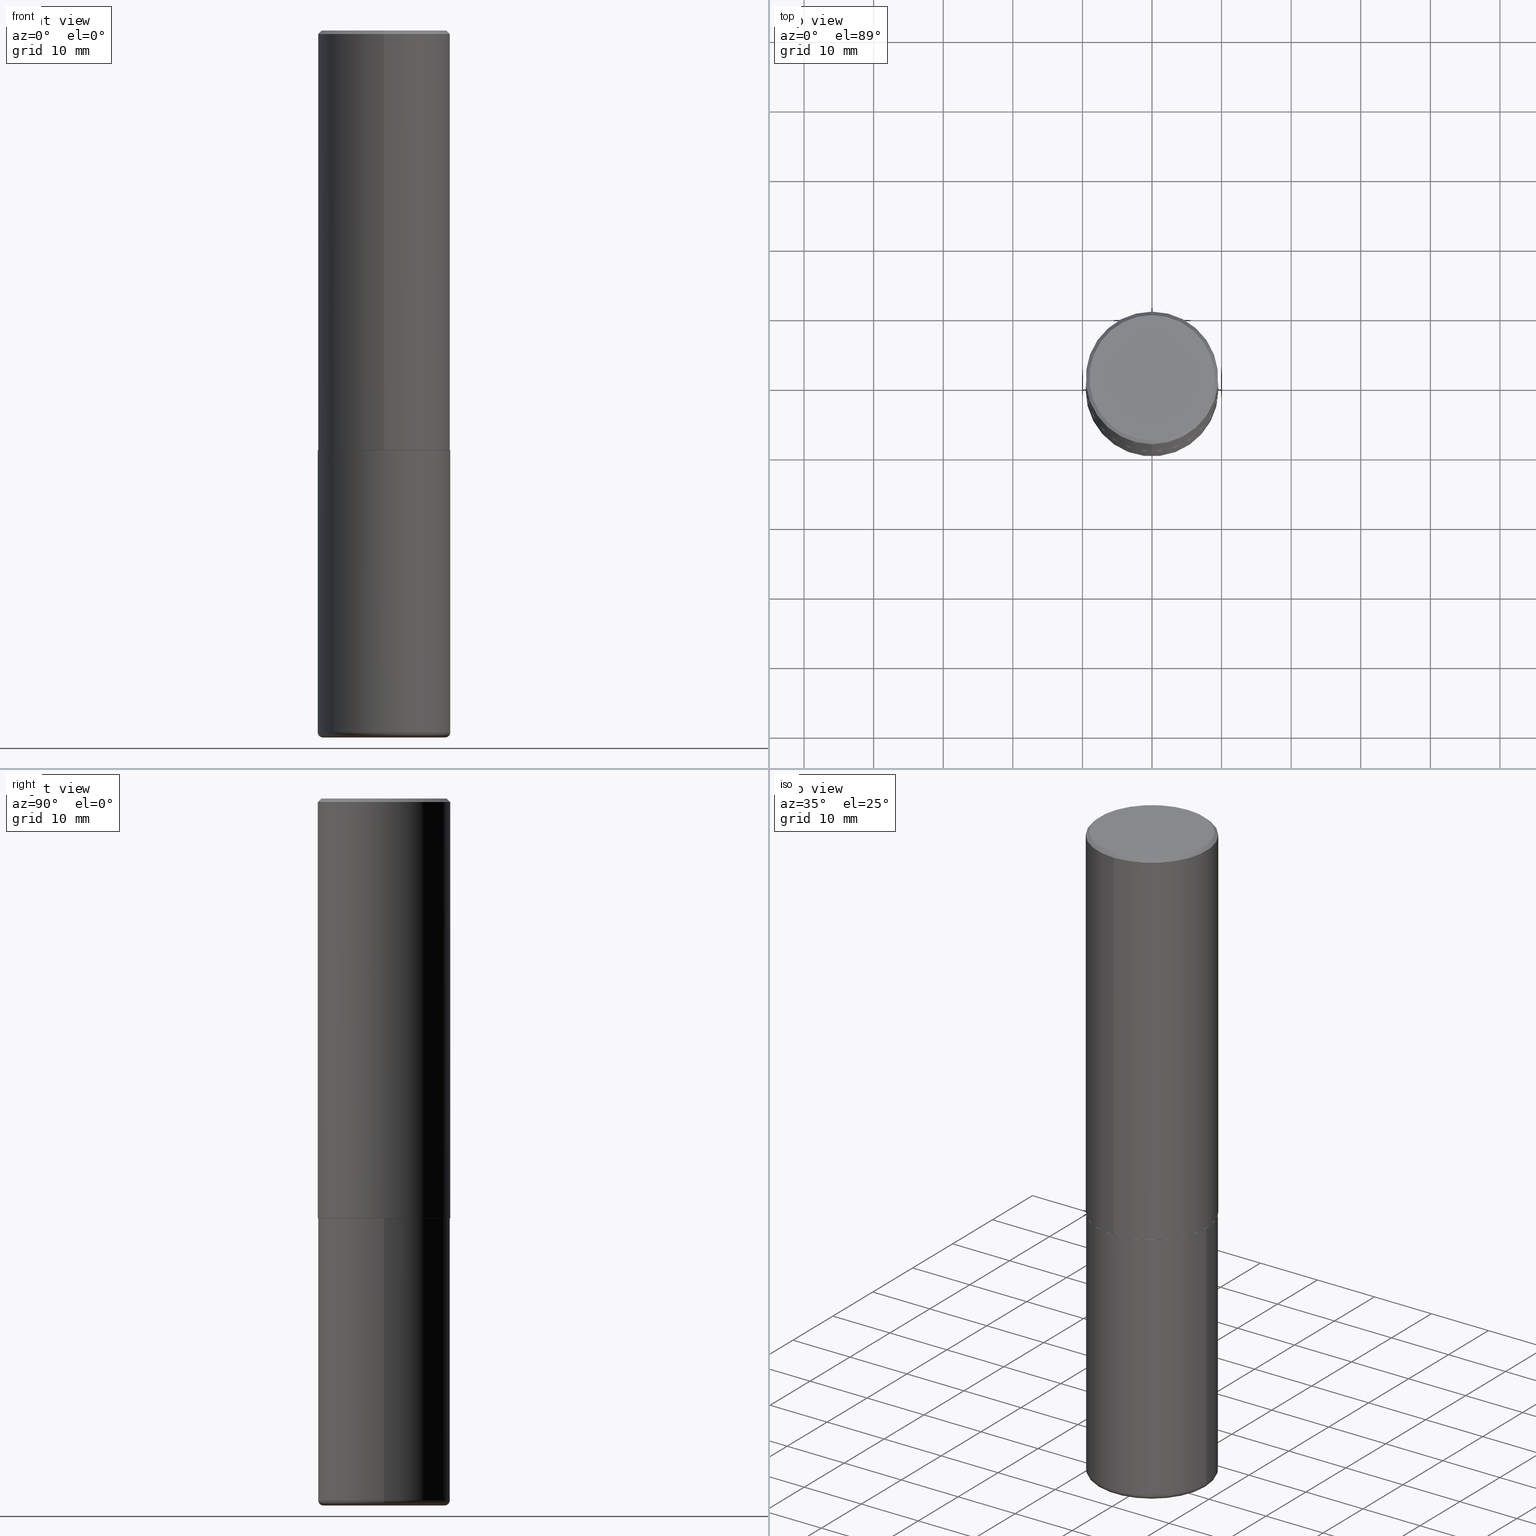
[diagram: canonical four-view strip — front | top / right | iso, engineering-drawing reading convention]
A machine part, canonical four-view strip (front | top / right | iso — engineering-drawing reading convention). The complete STEP part file that produces these views, byte-faithful:
ISO-10303-21;
HEADER;
FILE_DESCRIPTION (( 'STEP AP203' ),
    '1' );
FILE_NAME ('37222.STEP',
    '2024-03-01T22:12:57',
    ( '' ),
    ( '' ),
    'SwSTEP 2.0',
    'SolidWorks 2023',
    '' );
FILE_SCHEMA (( 'CONFIG_CONTROL_DESIGN' ));
ENDSEC;

DATA;
#1 = ORIENTED_EDGE ( 'NONE', *, *, #379, .F. ) ;
#2 = ADVANCED_FACE ( 'NONE', ( #380 ), #235, .T. ) ;
#3 = CARTESIAN_POINT ( 'NONE',  ( 9.708511160554992872E-29, -1.386118091520728738E-14, -3.970000000000000195 ) ) ;
#4 = CARTESIAN_POINT ( 'NONE',  ( 0.000000000000000000, 0.000000000000000000, 0.000000000000000000 ) ) ;
#5 = CLOSED_SHELL ( 'NONE', ( #63, #295, #2, #176, #353, #202, #34, #115 ) ) ;
#6 = VECTOR ( 'NONE', #133, 39.37007874015748143 ) ;
#7 = CARTESIAN_POINT ( 'NONE',  ( 9.781875224740546387E-29, -1.396592535537258233E-14, -4.000000000000000000 ) ) ;
#8 = FACE_OUTER_BOUND ( 'NONE', #311, .T. ) ;
#9 = APPROVAL_STATUS ( 'not_yet_approved' ) ;
#10 = LINE ( 'NONE', #141, #6 ) ;
#11 = EDGE_CURVE ( 'NONE', #87, #249, #285, .T. ) ;
#12 = EDGE_LOOP ( 'NONE', ( #1, #147, #318, #281 ) ) ;
#13 = APPROVAL_ROLE ( '' ) ;
#14 = CC_DESIGN_DATE_AND_TIME_ASSIGNMENT ( #46, #242, ( #354 ) ) ;
#15 = CIRCLE ( 'NONE', #261, 0.02999999999999995379 ) ;
#16 = ORIENTED_EDGE ( 'NONE', *, *, #153, .F. ) ;
#17 = UNCERTAINTY_MEASURE_WITH_UNIT (LENGTH_MEASURE( 1.000000000000000082E-05 ), #88, 'distance_accuracy_value', 'NONE');
#18 = ORIENTED_EDGE ( 'NONE', *, *, #126, .T. ) ;
#19 = DATE_AND_TIME ( #119, #75 ) ;
#20 = FACE_OUTER_BOUND ( 'NONE', #299, .T. ) ;
#21 = CIRCLE ( 'NONE', #168, 0.3750000000000000555 ) ;
#22 = PRODUCT_DEFINITION_FORMATION_WITH_SPECIFIED_SOURCE ( 'ANY', '', #360, .NOT_KNOWN. ) ;
#23 = DIRECTION ( 'NONE',  ( -2.445468806185136597E-29, 3.491481338843145583E-15, 1.000000000000000000 ) ) ;
#24 = ORIENTED_EDGE ( 'NONE', *, *, #189, .T. ) ;
#25 = PERSON ( 'UNSPECIFIED', 'UNSPECIFIED', 'UNSPECIFIED', ('UNSPECIFIED'), ('UNSPECIFIED'), ('UNSPECIFIED') ) ;
#26 = PRODUCT_DEFINITION ( 'UNKNOWN', '', #22, #314 ) ;
#27 = AXIS2_PLACEMENT_3D ( 'NONE', #130, #164, #390 ) ;
#28 = CLOSED_SHELL ( 'NONE', ( #186, #289, #336, #100, #90, #123 ) ) ;
#29 = AXIS2_PLACEMENT_3D ( 'NONE', #35, #196, #148 ) ;
#30 = FACE_OUTER_BOUND ( 'NONE', #207, .T. ) ;
#31 = DIRECTION ( 'NONE',  ( -2.445468806185136597E-29, 3.491481338843145583E-15, 1.000000000000000000 ) ) ;
#32 = CARTESIAN_POINT ( 'NONE',  ( 9.781875224740546387E-29, -1.396592535537258233E-14, -4.000000000000000000 ) ) ;
#33 = CARTESIAN_POINT ( 'NONE',  ( 0.000000000000000000, 0.000000000000000000, 0.000000000000000000 ) ) ;
#34 = ADVANCED_FACE ( 'NONE', ( #20 ), #356, .F. ) ;
#35 = CARTESIAN_POINT ( 'NONE',  ( 5.805863974919259746E-29, -8.295310498419343824E-15, -2.375000000000000000 ) ) ;
#36 = AXIS2_PLACEMENT_3D ( 'NONE', #7, #137, #337 ) ;
#37 = VECTOR ( 'NONE', #83, 39.37007874015748143 ) ;
#38 = CC_DESIGN_PERSON_AND_ORGANIZATION_ASSIGNMENT ( #402, #376, ( #22 ) ) ;
#39 = DIRECTION ( 'NONE',  ( 2.438088387897960049E-29, -3.491481338843145188E-15, -1.000000000000000000 ) ) ;
#40 = CARTESIAN_POINT ( 'NONE',  ( -0.3749999999999999445, -1.119664565610691011E-14, -3.969999999999999307 ) ) ;
#41 = SHAPE_DEFINITION_REPRESENTATION ( #165, #218 ) ;
#42 = CC_DESIGN_PERSON_AND_ORGANIZATION_ASSIGNMENT ( #279, #112, ( #26 ) ) ;
#43 = ORIENTED_EDGE ( 'NONE', *, *, #361, .F. ) ;
#44 = EDGE_LOOP ( 'NONE', ( #391, #171, #16, #205 ) ) ;
#45 = CARTESIAN_POINT ( 'NONE',  ( 0.000000000000000000, 0.000000000000000000, 0.000000000000000000 ) ) ;
#46 = DATE_AND_TIME ( #106, #394 ) ;
#47 = EDGE_LOOP ( 'NONE', ( #170, #273 ) ) ;
#48 = DATE_AND_TIME ( #181, #204 ) ;
#49 = DIRECTION ( 'NONE',  ( 1.000000000000000000, -6.982962677686266711E-15, 0.000000000000000000 ) ) ;
#50 = VERTEX_POINT ( 'NONE', #40 ) ;
#51 = DIRECTION ( 'NONE',  ( -6.982962677686266711E-15, -1.000000000000000000, 3.492762315123933556E-15 ) ) ;
#52 = CIRCLE ( 'NONE', #320, 0.3750000000000000555 ) ;
#53 = CC_DESIGN_SECURITY_CLASSIFICATION ( #354, ( #22 ) ) ;
#54 = ORIENTED_EDGE ( 'NONE', *, *, #224, .T. ) ;
#55 = COORDINATED_UNIVERSAL_TIME_OFFSET ( 5, 0, .BEHIND. ) ;
#56 = EDGE_CURVE ( 'NONE', #255, #50, #21, .T. ) ;
#57 = DIRECTION ( 'NONE',  ( -6.982962677686266711E-15, -1.000000000000000000, 3.492762315123933556E-15 ) ) ;
#58 = ORIENTED_EDGE ( 'NONE', *, *, #77, .T. ) ;
#59 = DIRECTION ( 'NONE',  ( -1.000000000000000000, 7.105427357601001859E-15, 0.000000000000000000 ) ) ;
#60 = CIRCLE ( 'NONE', #187, 0.3739999999999999991 ) ;
#61 = DIRECTION ( 'NONE',  ( 6.982962677686265922E-15, 1.000000000000000000, -3.494488891895536035E-15 ) ) ;
#62 = DIRECTION ( 'NONE',  ( -6.982962677686266711E-15, -1.000000000000000000, 3.492762315123933556E-15 ) ) ;
#63 = ADVANCED_FACE ( 'NONE', ( #272 ), #198, .T. ) ;
#64 = FACE_OUTER_BOUND ( 'NONE', #44, .T. ) ;
#65 = FACE_OUTER_BOUND ( 'NONE', #317, .T. ) ;
#66 = ORIENTED_EDGE ( 'NONE', *, *, #56, .F. ) ;
#67 = DIRECTION ( 'NONE',  ( 1.000000000000000000, -6.982962677686266711E-15, 0.000000000000000000 ) ) ;
#68 = VECTOR ( 'NONE', #312, 39.37007874015748854 ) ;
#69 = VERTEX_POINT ( 'NONE', #328 ) ;
#70 = DIRECTION ( 'NONE',  ( -2.444574305229161733E-29, 3.492762315123933951E-15, 1.000000000000000000 ) ) ;
#71 = SECURITY_CLASSIFICATION_LEVEL ( 'unclassified' ) ;
#72 = LINE ( 'NONE', #364, #373 ) ;
#73 = DIRECTION ( 'NONE',  ( 6.982962677686265922E-15, 1.000000000000000000, -3.492762315123933951E-15 ) ) ;
#74 = ORIENTED_EDGE ( 'NONE', *, *, #240, .T. ) ;
#75 = LOCAL_TIME ( 17, 12, 57.00000000000000000, #55 ) ;
#76 = DIRECTION ( 'NONE',  ( -4.937700262164378437E-15, -0.7071067811865208164, 0.7071067811865739960 ) ) ;
#77 = EDGE_CURVE ( 'NONE', #69, #215, #403, .T. ) ;
#78 = EDGE_LOOP ( 'NONE', ( #174, #271 ) ) ;
#79 = CARTESIAN_POINT ( 'NONE',  ( 5.807988414689699417E-29, -8.292268179752470118E-15, -2.375000000000000000 ) ) ;
#80 = CC_DESIGN_PERSON_AND_ORGANIZATION_ASSIGNMENT ( #105, #138, ( #354 ) ) ;
#81 = ORIENTED_EDGE ( 'NONE', *, *, #264, .F. ) ;
#82 = APPLICATION_PROTOCOL_DEFINITION ( 'international standard', 'config_control_design', 1994, #259 ) ;
#83 = DIRECTION ( 'NONE',  ( -2.444574305229161733E-29, 3.492762315123933951E-15, 1.000000000000000000 ) ) ;
#84 = ORIENTED_EDGE ( 'NONE', *, *, #303, .T. ) ;
#85 = CIRCLE ( 'NONE', #111, 0.3549999999999997602 ) ;
#86 = AXIS2_PLACEMENT_3D ( 'NONE', #333, #39, #359 ) ;
#87 = VERTEX_POINT ( 'NONE', #270 ) ;
#88 =( CONVERSION_BASED_UNIT ( 'INCH', #256 ) LENGTH_UNIT ( ) NAMED_UNIT ( #410 ) );
#89 = CARTESIAN_POINT ( 'NONE',  ( -0.3450000000000000289, -1.135559928655357428E-14, -4.000000000000000000 ) ) ;
#90 = ADVANCED_FACE ( 'NONE', ( #305 ), #365, .T. ) ;
#91 = AXIS2_PLACEMENT_3D ( 'NONE', #79, #109, #49 ) ;
#92 = CIRCLE ( 'NONE', #124, 0.3750000000000000555 ) ;
#93 = CARTESIAN_POINT ( 'NONE',  ( 4.889148610458350090E-31, -6.985524630247905373E-17, -0.02000000000000010797 ) ) ;
#94 = DIRECTION ( 'NONE',  ( -6.982962677686266711E-15, -1.000000000000000000, 3.642463991552348591E-15 ) ) ;
#95 = ORGANIZATION ( 'UNSPECIFIED', 'UNSPECIFIED', '' ) ;
#96 = CARTESIAN_POINT ( 'NONE',  ( 5.805863974919259746E-29, -8.295310498419343824E-15, -2.375000000000000000 ) ) ;
#97 = APPLICATION_CONTEXT ( 'configuration controlled 3d designs of mechanical parts and assemblies' ) ;
#98 = DIRECTION ( 'NONE',  ( -2.445468806185136597E-29, 3.491481338843145583E-15, 1.000000000000000000 ) ) ;
#99 = CYLINDRICAL_SURFACE ( 'NONE', #411, 0.3750000000000000555 ) ;
#100 = ADVANCED_FACE ( 'NONE', ( #389 ), #263, .T. ) ;
#101 = AXIS2_PLACEMENT_3D ( 'NONE', #96, #302, #157 ) ;
#102 = DIRECTION ( 'NONE',  ( 1.000000000000000000, -6.982962677686263555E-15, 4.883557194083111219E-29 ) ) ;
#103 = VECTOR ( 'NONE', #160, 39.37007874015748854 ) ;
#104 = FACE_OUTER_BOUND ( 'NONE', #116, .T. ) ;
#105 = PERSON_AND_ORGANIZATION ( #25, #95 ) ;
#106 = CALENDAR_DATE ( 2024, 1, 3 ) ;
#107 = DIRECTION ( 'NONE',  ( -6.982962677686266711E-15, -1.000000000000000000, 3.492762315123933556E-15 ) ) ;
#108 = EDGE_CURVE ( 'NONE', #215, #69, #60, .T. ) ;
#109 = DIRECTION ( 'NONE',  ( -2.445468806185136597E-29, 3.491481338843145583E-15, 1.000000000000000000 ) ) ;
#110 = ORIENTED_EDGE ( 'NONE', *, *, #310, .T. ) ;
#111 = AXIS2_PLACEMENT_3D ( 'NONE', #185, #348, #62 ) ;
#112 = PERSON_AND_ORGANIZATION_ROLE ( 'creator' ) ;
#113 = VERTEX_POINT ( 'NONE', #267 ) ;
#114 = DIRECTION ( 'NONE',  ( 0.000000000000000000, 0.000000000000000000, 1.000000000000000000 ) ) ;
#115 = ADVANCED_FACE ( 'NONE', ( #104 ), #230, .F. ) ;
#116 = EDGE_LOOP ( 'NONE', ( #398, #251 ) ) ;
#117 = PERSON_AND_ORGANIZATION_ROLE ( 'design_owner' ) ;
#118 = EDGE_LOOP ( 'NONE', ( #58, #135, #145, #43 ) ) ;
#119 = CALENDAR_DATE ( 2024, 1, 3 ) ;
#120 = CARTESIAN_POINT ( 'NONE',  ( 5.803419400614030161E-29, -8.291817736104219412E-15, -2.373999999999999666 ) ) ;
#121 = APPROVAL_DATE_TIME ( #149, #291 ) ;
#122 = DIRECTION ( 'NONE',  ( 5.024295867787889629E-15, 0.7071067811865257013, 0.7071067811865691111 ) ) ;
#123 = ADVANCED_FACE ( 'NONE', ( #324 ), #231, .T. ) ;
#124 = AXIS2_PLACEMENT_3D ( 'NONE', #280, #23, #237 ) ;
#125 = DIRECTION ( 'NONE',  ( 2.444574305229161733E-29, -3.492762315123933951E-15, -1.000000000000000000 ) ) ;
#126 = EDGE_CURVE ( 'NONE', #308, #183, #395, .T. ) ;
#127 = DIRECTION ( 'NONE',  ( 1.000000000000000000, -6.982962677686266711E-15, 0.000000000000000000 ) ) ;
#128 = LINE ( 'NONE', #352, #103 ) ;
#129 = TOROIDAL_SURFACE ( 'NONE', #343, 0.3450000000000000289, 0.02999999999999998848 ) ;
#130 = CARTESIAN_POINT ( 'NONE',  ( 5.805863974919259746E-29, -8.295310498419343824E-15, -2.375000000000000000 ) ) ;
#131 = CARTESIAN_POINT ( 'NONE',  ( 0.000000000000000000, 0.000000000000000000, 0.000000000000000000 ) ) ;
#132 = CARTESIAN_POINT ( 'NONE',  ( 5.805863974919259746E-29, -8.295310498419343824E-15, -2.375000000000000000 ) ) ;
#133 = DIRECTION ( 'NONE',  ( -2.444574305229161733E-29, 3.492762315123933951E-15, 1.000000000000000000 ) ) ;
#134 = COORDINATED_UNIVERSAL_TIME_OFFSET ( 5, 0, .BEHIND. ) ;
#135 = ORIENTED_EDGE ( 'NONE', *, *, #217, .T. ) ;
#136 = DIRECTION ( 'NONE',  ( -6.982962677686266711E-15, -1.000000000000000000, 3.652203200085913145E-15 ) ) ;
#137 = DIRECTION ( 'NONE',  ( -2.445468806185136597E-29, 3.491481338843145583E-15, 1.000000000000000000 ) ) ;
#138 = PERSON_AND_ORGANIZATION_ROLE ( 'classification_officer' ) ;
#139 = ORIENTED_EDGE ( 'NONE', *, *, #361, .T. ) ;
#140 = APPROVAL_ROLE ( '' ) ;
#141 = CARTESIAN_POINT ( 'NONE',  ( -2.618611004132351200E-15, -0.3750000000000001665, 1.309785868171475725E-15 ) ) ;
#142 = COORDINATED_UNIVERSAL_TIME_OFFSET ( 5, 0, .BEHIND. ) ;
#143 = VECTOR ( 'NONE', #122, 39.37007874015748854 ) ;
#144 = DIRECTION ( 'NONE',  ( 1.000000000000000000, 0.000000000000000000, 0.000000000000000000 ) ) ;
#145 = ORIENTED_EDGE ( 'NONE', *, *, #303, .F. ) ;
#146 = CARTESIAN_POINT ( 'NONE',  ( 9.781875224740546387E-29, -1.396592535537258233E-14, -4.000000000000000000 ) ) ;
#147 = ORIENTED_EDGE ( 'NONE', *, *, #406, .F. ) ;
#148 = DIRECTION ( 'NONE',  ( -6.982962677686266711E-15, -1.000000000000000000, 3.652203200085913145E-15 ) ) ;
#149 = DATE_AND_TIME ( #400, #150 ) ;
#150 = LOCAL_TIME ( 17, 12, 57.00000000000000000, #341 ) ;
#151 = LOCAL_TIME ( 17, 12, 57.00000000000000000, #134 ) ;
#152 = CARTESIAN_POINT ( 'NONE',  ( 2.660982545421634357E-15, 0.3739999999999917835, -2.375000000000001776 ) ) ;
#153 = EDGE_CURVE ( 'NONE', #306, #113, #275, .T. ) ;
#154 = APPROVAL ( #9, 'UNSPECIFIED' ) ;
#155 = AXIS2_PLACEMENT_3D ( 'NONE', #182, #284, #257 ) ;
#156 = CARTESIAN_POINT ( 'NONE',  ( 0.3450000000000000289, -1.627030303900905066E-14, -3.970000000000000195 ) ) ;
#157 = DIRECTION ( 'NONE',  ( -6.982962677686266711E-15, -1.000000000000000000, 3.652203200085913145E-15 ) ) ;
#158 = DIRECTION ( 'NONE',  ( -2.444574305229161733E-29, 3.492762315123933951E-15, 1.000000000000000000 ) ) ;
#159 = EDGE_CURVE ( 'NONE', #113, #306, #92, .T. ) ;
#160 = DIRECTION ( 'NONE',  ( 4.937700262164533054E-15, 0.7071067811865430208, -0.7071067811865517916 ) ) ;
#161 = CC_DESIGN_APPROVAL ( #412, ( #22 ) ) ;
#162 = CONICAL_SURFACE ( 'NONE', #29, 0.3739999999999999991, 0.7853981633974141952 ) ;
#163 = LINE ( 'NONE', #172, #68 ) ;
#164 = DIRECTION ( 'NONE',  ( -2.444574305229161733E-29, 3.492762315123933951E-15, 1.000000000000000000 ) ) ;
#165 = PRODUCT_DEFINITION_SHAPE ( 'NONE', 'NONE',  #26 ) ;
#166 = DIRECTION ( 'NONE',  ( -2.445468806185136597E-29, 3.491481338843145583E-15, 1.000000000000000000 ) ) ;
#167 = EDGE_LOOP ( 'NONE', ( #180, #177, #313, #233 ) ) ;
#168 = AXIS2_PLACEMENT_3D ( 'NONE', #417, #31, #67 ) ;
#169 =( GEOMETRIC_REPRESENTATION_CONTEXT ( 3 ) GLOBAL_UNCERTAINTY_ASSIGNED_CONTEXT ( ( #17 ) ) GLOBAL_UNIT_ASSIGNED_CONTEXT ( ( #88, #216, #250 ) ) REPRESENTATION_CONTEXT ( 'NONE', 'WORKASPACE' ) );
#170 = ORIENTED_EDGE ( 'NONE', *, *, #224, .F. ) ;
#171 = ORIENTED_EDGE ( 'NONE', *, *, #206, .T. ) ;
#172 = CARTESIAN_POINT ( 'NONE',  ( -2.572686749164323547E-15, -0.3750000000000001110, -0.01999999999999879652 ) ) ;
#173 = DIRECTION ( 'NONE',  ( 2.438088387897960049E-29, -3.491481338843145188E-15, -1.000000000000000000 ) ) ;
#174 = ORIENTED_EDGE ( 'NONE', *, *, #153, .T. ) ;
#175 = PERSON_AND_ORGANIZATION ( #25, #95 ) ;
#176 = ADVANCED_FACE ( 'NONE', ( #355 ), #178, .T. ) ;
#177 = ORIENTED_EDGE ( 'NONE', *, *, #379, .T. ) ;
#178 = CONICAL_SURFACE ( 'NONE', #418, 0.3750000000000000555, 0.7853981633974456145 ) ;
#179 = APPROVAL_STATUS ( 'not_yet_approved' ) ;
#180 = ORIENTED_EDGE ( 'NONE', *, *, #316, .F. ) ;
#181 = CALENDAR_DATE ( 2024, 1, 3 ) ;
#182 = CARTESIAN_POINT ( 'NONE',  ( 5.803419400614030161E-29, -8.291817736104219412E-15, -2.373999999999999666 ) ) ;
#183 = VERTEX_POINT ( 'NONE', #330 ) ;
#184 = PERSON_AND_ORGANIZATION ( #25, #95 ) ;
#185 = CARTESIAN_POINT ( 'NONE',  ( -6.584975069595768119E-45, 9.408489944411256093E-31, 2.693710334560058270E-16 ) ) ;
#186 = ADVANCED_FACE ( 'NONE', ( #64 ), #99, .T. ) ;
#187 = AXIS2_PLACEMENT_3D ( 'NONE', #298, #331, #136 ) ;
#188 = CARTESIAN_POINT ( 'NONE',  ( 0.3750000000000000555, -2.618611004132350016E-15, 1.828566290923476203E-29 ) ) ;
#189 = EDGE_CURVE ( 'NONE', #220, #87, #223, .T. ) ;
#190 = CARTESIAN_POINT ( 'NONE',  ( -2.618611004132293613E-15, -0.3750000000000085487, -2.373999999999998334 ) ) ;
#191 = AXIS2_PLACEMENT_3D ( 'NONE', #45, #392, #107 ) ;
#192 = CC_DESIGN_PERSON_AND_ORGANIZATION_ASSIGNMENT ( #339, #277, ( #22 ) ) ;
#193 = DIRECTION ( 'NONE',  ( -2.445468806185136877E-29, 3.491481338843145188E-15, 1.000000000000000000 ) ) ;
#194 = DIRECTION ( 'NONE',  ( -2.444574305229161733E-29, 3.492762315123933951E-15, 1.000000000000000000 ) ) ;
#195 = ORIENTED_EDGE ( 'NONE', *, *, #159, .F. ) ;
#196 = DIRECTION ( 'NONE',  ( -2.444574305229161733E-29, 3.492762315123933951E-15, 1.000000000000000000 ) ) ;
#197 = EDGE_CURVE ( 'NONE', #255, #306, #290, .T. ) ;
#198 = CONICAL_SURFACE ( 'NONE', #101, 0.3739999999999999991, 0.7853981633974141952 ) ;
#199 = CIRCLE ( 'NONE', #276, 0.3750000000000002776 ) ;
#200 = APPROVAL_DATE_TIME ( #362, #154 ) ;
#201 = DIRECTION ( 'NONE',  ( 1.000000000000000000, -6.982962677686265922E-15, 4.876176775795935793E-29 ) ) ;
#202 = ADVANCED_FACE ( 'NONE', ( #65 ), #162, .T. ) ;
#203 = VERTEX_POINT ( 'NONE', #287 ) ;
#204 = LOCAL_TIME ( 17, 12, 57.00000000000000000, #252 ) ;
#205 = ORIENTED_EDGE ( 'NONE', *, *, #197, .F. ) ;
#206 = EDGE_CURVE ( 'NONE', #50, #113, #268, .T. ) ;
#207 = EDGE_LOOP ( 'NONE', ( #84, #24, #81, #340 ) ) ;
#208 = PERSON_AND_ORGANIZATION ( #25, #95 ) ;
#209 = ORIENTED_EDGE ( 'NONE', *, *, #217, .F. ) ;
#210 =( LENGTH_UNIT ( ) NAMED_UNIT ( * ) SI_UNIT ( $, .METRE. ) );
#211 = ORIENTED_EDGE ( 'NONE', *, *, #240, .F. ) ;
#212 = AXIS2_PLACEMENT_3D ( 'NONE', #294, #346, #59 ) ;
#213 = APPROVAL_STATUS ( 'not_yet_approved' ) ;
#214 = DIRECTION ( 'NONE',  ( 1.000000000000000000, -6.982962677686263555E-15, 4.883557194083111219E-29 ) ) ;
#215 = VERTEX_POINT ( 'NONE', #152 ) ;
#216 =( NAMED_UNIT ( * ) PLANE_ANGLE_UNIT ( ) SI_UNIT ( $, .RADIAN. ) );
#217 = EDGE_CURVE ( 'NONE', #215, #220, #325, .T. ) ;
#218 = ADVANCED_BREP_SHAPE_REPRESENTATION ( '37222', ( #248, #378, #404 ), #169 ) ;
#219 = FACE_OUTER_BOUND ( 'NONE', #351, .T. ) ;
#220 = VERTEX_POINT ( 'NONE', #407 ) ;
#221 = PRODUCT_RELATED_PRODUCT_CATEGORY ( 'detail', '', ( #360 ) ) ;
#222 = APPROVAL_PERSON_ORGANIZATION ( #239, #154, #140 ) ;
#223 = LINE ( 'NONE', #229, #37 ) ;
#224 = EDGE_CURVE ( 'NONE', #183, #308, #236, .T. ) ;
#225 = CARTESIAN_POINT ( 'NONE',  ( -0.3750000000000000555, 2.664535259100376091E-15, -1.844600658845589598E-29 ) ) ;
#226 = DIRECTION ( 'NONE',  ( -6.982962677686265922E-15, -1.000000000000000000, 3.494488891895536035E-15 ) ) ;
#227 = CARTESIAN_POINT ( 'NONE',  ( 2.657429831742832670E-15, 0.3739999999999917835, -2.375000000000001776 ) ) ;
#228 = AXIS2_PLACEMENT_3D ( 'NONE', #234, #70, #51 ) ;
#229 = CARTESIAN_POINT ( 'NONE',  ( 2.664535259100376486E-15, 0.3750000000000001665, -1.309785868171475725E-15 ) ) ;
#230 = PLANE ( 'NONE',  #416 ) ;
#231 = PLANE ( 'NONE',  #300 ) ;
#232 = CC_DESIGN_DATE_AND_TIME_ASSIGNMENT ( #48, #372, ( #26 ) ) ;
#233 = ORIENTED_EDGE ( 'NONE', *, *, #274, .F. ) ;
#234 = CARTESIAN_POINT ( 'NONE',  ( -6.584975069595768119E-45, 9.408489944411256093E-31, 2.693710334560058270E-16 ) ) ;
#235 = CONICAL_SURFACE ( 'NONE', #334, 0.3750000000000000555, 0.7853981633974456145 ) ;
#236 = CIRCLE ( 'NONE', #245, 0.3450000000000000289 ) ;
#237 = DIRECTION ( 'NONE',  ( 1.000000000000000000, -6.982962677686266711E-15, 0.000000000000000000 ) ) ;
#238 = CARTESIAN_POINT ( 'NONE',  ( 9.708511160554992872E-29, -1.386118091520728738E-14, -3.970000000000000195 ) ) ;
#239 = PERSON_AND_ORGANIZATION ( #25, #95 ) ;
#240 = EDGE_CURVE ( 'NONE', #220, #278, #199, .T. ) ;
#241 = CARTESIAN_POINT ( 'NONE',  ( 2.478951750578623026E-15, 0.3549999999999997602, -1.105245105140992969E-15 ) ) ;
#242 = DATE_TIME_ROLE ( 'classification_date' ) ;
#243 = ORIENTED_EDGE ( 'NONE', *, *, #197, .T. ) ;
#244 = EDGE_CURVE ( 'NONE', #50, #255, #52, .T. ) ;
#245 = AXIS2_PLACEMENT_3D ( 'NONE', #32, #265, #323 ) ;
#246 = DIRECTION ( 'NONE',  ( -2.445468806185136877E-29, 3.491481338843145188E-15, 1.000000000000000000 ) ) ;
#247 = ORIENTED_EDGE ( 'NONE', *, *, #310, .F. ) ;
#248 = MANIFOLD_SOLID_BREP ( 'Body-Move/Copy2[1]', #28 ) ;
#249 = VERTEX_POINT ( 'NONE', #382 ) ;
#250 =( NAMED_UNIT ( * ) SI_UNIT ( $, .STERADIAN. ) SOLID_ANGLE_UNIT ( ) );
#251 = ORIENTED_EDGE ( 'NONE', *, *, #316, .T. ) ;
#252 = COORDINATED_UNIVERSAL_TIME_OFFSET ( 5, 0, .BEHIND. ) ;
#253 = AXIS2_PLACEMENT_3D ( 'NONE', #238, #166, #102 ) ;
#254 = CIRCLE ( 'NONE', #228, 0.3549999999999997602 ) ;
#255 = VERTEX_POINT ( 'NONE', #262 ) ;
#256 = LENGTH_MEASURE_WITH_UNIT ( LENGTH_MEASURE( 0.02539999999999999897 ), #210 );
#257 = DIRECTION ( 'NONE',  ( -6.982962677686266711E-15, -1.000000000000000000, 3.642463991552348591E-15 ) ) ;
#258 = DIRECTION ( 'NONE',  ( -2.444574305229161733E-29, 3.492762315123933951E-15, 1.000000000000000000 ) ) ;
#259 = APPLICATION_CONTEXT ( 'configuration controlled 3d designs of mechanical parts and assemblies' ) ;
#260 = AXIS2_PLACEMENT_3D ( 'NONE', #4, #98, #201 ) ;
#261 = AXIS2_PLACEMENT_3D ( 'NONE', #156, #304, #307 ) ;
#262 = CARTESIAN_POINT ( 'NONE',  ( 0.3749999999999999445, -1.647979191933963740E-14, -3.969999999999999307 ) ) ;
#263 = CYLINDRICAL_SURFACE ( 'NONE', #260, 0.3750000000000000555 ) ;
#264 = EDGE_CURVE ( 'NONE', #249, #87, #301, .T. ) ;
#265 = DIRECTION ( 'NONE',  ( -2.445468806185136597E-29, 3.491481338843145583E-15, 1.000000000000000000 ) ) ;
#266 = APPROVAL_PERSON_ORGANIZATION ( #175, #412, #13 ) ;
#267 = CARTESIAN_POINT ( 'NONE',  ( -0.3750000000000000555, -8.412189288379502265E-15, -2.375000000000000000 ) ) ;
#268 = LINE ( 'NONE', #225, #396 ) ;
#269 = CARTESIAN_POINT ( 'NONE',  ( 4.889148610458350090E-31, -6.985524630247905373E-17, -0.02000000000000010797 ) ) ;
#270 = CARTESIAN_POINT ( 'NONE',  ( 2.618611004132350411E-15, 0.3749999999999999445, -0.02000000000000141595 ) ) ;
#271 = ORIENTED_EDGE ( 'NONE', *, *, #159, .T. ) ;
#272 = FACE_OUTER_BOUND ( 'NONE', #118, .T. ) ;
#273 = ORIENTED_EDGE ( 'NONE', *, *, #126, .F. ) ;
#274 = EDGE_CURVE ( 'NONE', #342, #87, #128, .T. ) ;
#275 = CIRCLE ( 'NONE', #91, 0.3750000000000000555 ) ;
#276 = AXIS2_PLACEMENT_3D ( 'NONE', #120, #258, #94 ) ;
#277 = PERSON_AND_ORGANIZATION_ROLE ( 'design_supplier' ) ;
#278 = VERTEX_POINT ( 'NONE', #190 ) ;
#279 = PERSON_AND_ORGANIZATION ( #25, #95 ) ;
#280 = CARTESIAN_POINT ( 'NONE',  ( 5.807988414689699417E-29, -8.292268179752470118E-15, -2.375000000000000000 ) ) ;
#281 = ORIENTED_EDGE ( 'NONE', *, *, #11, .T. ) ;
#282 = ORIENTED_EDGE ( 'NONE', *, *, #244, .F. ) ;
#283 = APPROVAL_DATE_TIME ( #19, #412 ) ;
#284 = DIRECTION ( 'NONE',  ( -2.444574305229161733E-29, 3.492762315123933951E-15, 1.000000000000000000 ) ) ;
#285 = CIRCLE ( 'NONE', #349, 0.3750000000000000555 ) ;
#286 = CARTESIAN_POINT ( 'NONE',  ( 0.000000000000000000, 0.000000000000000000, 0.000000000000000000 ) ) ;
#287 = CARTESIAN_POINT ( 'NONE',  ( -2.504081769186607821E-15, -0.3549999999999997602, 1.509301655325001413E-15 ) ) ;
#288 = ORIENTED_EDGE ( 'NONE', *, *, #189, .F. ) ;
#289 = ADVANCED_FACE ( 'NONE', ( #219 ), #129, .T. ) ;
#290 = LINE ( 'NONE', #188, #327 ) ;
#291 = APPROVAL ( #179, 'UNSPECIFIED' ) ;
#292 = AXIS2_PLACEMENT_3D ( 'NONE', #132, #194, #386 ) ;
#293 = CIRCLE ( 'NONE', #212, 0.02999999999999995379 ) ;
#294 = CARTESIAN_POINT ( 'NONE',  ( -0.3450000000000000289, -1.140980847683494193E-14, -3.970000000000000195 ) ) ;
#295 = ADVANCED_FACE ( 'NONE', ( #30 ), #405, .T. ) ;
#296 = CARTESIAN_POINT ( 'NONE',  ( 4.889148610458350090E-31, -6.985524630247905373E-17, -0.02000000000000010797 ) ) ;
#297 = DIRECTION ( 'NONE',  ( -2.445468806185136597E-29, 3.491481338843145583E-15, 1.000000000000000000 ) ) ;
#298 = CARTESIAN_POINT ( 'NONE',  ( 5.805863974919259746E-29, -8.295310498419343824E-15, -2.375000000000000000 ) ) ;
#299 = EDGE_LOOP ( 'NONE', ( #399, #315 ) ) ;
#300 = AXIS2_PLACEMENT_3D ( 'NONE', #146, #173, #374 ) ;
#301 = CIRCLE ( 'NONE', #322, 0.3750000000000000555 ) ;
#302 = DIRECTION ( 'NONE',  ( -2.444574305229161733E-29, 3.492762315123933951E-15, 1.000000000000000000 ) ) ;
#303 = EDGE_CURVE ( 'NONE', #278, #220, #366, .T. ) ;
#304 = DIRECTION ( 'NONE',  ( -6.982962677686266711E-15, -1.000000000000000000, 3.491481338843145583E-15 ) ) ;
#305 = FACE_OUTER_BOUND ( 'NONE', #344, .T. ) ;
#306 = VERTEX_POINT ( 'NONE', #377 ) ;
#307 = DIRECTION ( 'NONE',  ( 1.000000000000000000, -6.982962677686279332E-15, 0.000000000000000000 ) ) ;
#308 = VERTEX_POINT ( 'NONE', #89 ) ;
#309 = CARTESIAN_POINT ( 'NONE',  ( 2.548781377355486718E-15, 0.3549999999999997602, -9.705595884129897592E-16 ) ) ;
#310 = EDGE_CURVE ( 'NONE', #308, #50, #293, .T. ) ;
#311 = EDGE_LOOP ( 'NONE', ( #288, #74, #332, #367 ) ) ;
#312 = DIRECTION ( 'NONE',  ( -4.851104656540950075E-15, -0.7071067811865479058, -0.7071067811865469066 ) ) ;
#313 = ORIENTED_EDGE ( 'NONE', *, *, #264, .T. ) ;
#314 = DESIGN_CONTEXT ( 'detailed design', #259, 'design' ) ;
#315 = ORIENTED_EDGE ( 'NONE', *, *, #108, .F. ) ;
#316 = EDGE_CURVE ( 'NONE', #203, #342, #85, .T. ) ;
#317 = EDGE_LOOP ( 'NONE', ( #209, #363, #139, #211 ) ) ;
#318 = ORIENTED_EDGE ( 'NONE', *, *, #274, .T. ) ;
#319 = APPROVAL_ROLE ( '' ) ;
#320 = AXIS2_PLACEMENT_3D ( 'NONE', #414, #381, #127 ) ;
#321 = AXIS2_PLACEMENT_3D ( 'NONE', #131, #345, #57 ) ;
#322 = AXIS2_PLACEMENT_3D ( 'NONE', #296, #158, #415 ) ;
#323 = DIRECTION ( 'NONE',  ( 1.000000000000000000, -6.982962677686267499E-15, 0.000000000000000000 ) ) ;
#324 = FACE_OUTER_BOUND ( 'NONE', #47, .T. ) ;
#325 = LINE ( 'NONE', #227, #143 ) ;
#326 = EDGE_CURVE ( 'NONE', #183, #255, #15, .T. ) ;
#327 = VECTOR ( 'NONE', #246, 39.37007874015748143 ) ;
#328 = CARTESIAN_POINT ( 'NONE',  ( -2.611628041454605626E-15, -0.3740000000000082703, -2.374999999999998668 ) ) ;
#329 = PLANE ( 'NONE',  #86 ) ;
#330 = CARTESIAN_POINT ( 'NONE',  ( 0.3450000000000000289, -1.637504747917434403E-14, -4.000000000000000000 ) ) ;
#331 = DIRECTION ( 'NONE',  ( -2.444574305229161733E-29, 3.492762315123933951E-15, 1.000000000000000000 ) ) ;
#332 = ORIENTED_EDGE ( 'NONE', *, *, #397, .T. ) ;
#333 = CARTESIAN_POINT ( 'NONE',  ( 5.807988414689699417E-29, -8.292268179752470118E-15, -2.375000000000000000 ) ) ;
#334 = AXIS2_PLACEMENT_3D ( 'NONE', #408, #125, #61 ) ;
#335 = APPROVAL_PERSON_ORGANIZATION ( #208, #291, #319 ) ;
#336 = ADVANCED_FACE ( 'NONE', ( #338 ), #329, .F. ) ;
#337 = DIRECTION ( 'NONE',  ( 1.000000000000000000, -6.982962677686267499E-15, 0.000000000000000000 ) ) ;
#338 = FACE_OUTER_BOUND ( 'NONE', #78, .T. ) ;
#339 = PERSON_AND_ORGANIZATION ( #25, #95 ) ;
#340 = ORIENTED_EDGE ( 'NONE', *, *, #397, .F. ) ;
#341 = COORDINATED_UNIVERSAL_TIME_OFFSET ( 5, 0, .BEHIND. ) ;
#342 = VERTEX_POINT ( 'NONE', #309 ) ;
#343 = AXIS2_PLACEMENT_3D ( 'NONE', #3, #387, #214 ) ;
#344 = EDGE_LOOP ( 'NONE', ( #247, #18, #393, #282 ) ) ;
#345 = DIRECTION ( 'NONE',  ( -2.444574305229161733E-29, 3.492762315123933951E-15, 1.000000000000000000 ) ) ;
#346 = DIRECTION ( 'NONE',  ( 7.105427357601001859E-15, 1.000000000000000000, -3.491481338843145583E-15 ) ) ;
#347 = CC_DESIGN_APPROVAL ( #154, ( #354 ) ) ;
#348 = DIRECTION ( 'NONE',  ( -2.444574305229161733E-29, 3.492762315123933951E-15, 1.000000000000000000 ) ) ;
#349 = AXIS2_PLACEMENT_3D ( 'NONE', #93, #413, #226 ) ;
#350 = DIRECTION ( 'NONE',  ( 2.444574305229161733E-29, -3.492762315123933951E-15, -1.000000000000000000 ) ) ;
#351 = EDGE_LOOP ( 'NONE', ( #54, #110, #66, #371 ) ) ;
#352 = CARTESIAN_POINT ( 'NONE',  ( 2.618611004132350411E-15, 0.3749999999999999445, -0.02000000000000141595 ) ) ;
#353 = ADVANCED_FACE ( 'NONE', ( #8 ), #357, .T. ) ;
#354 = SECURITY_CLASSIFICATION ( '', '', #71 ) ;
#355 = FACE_OUTER_BOUND ( 'NONE', #12, .T. ) ;
#356 = PLANE ( 'NONE',  #292 ) ;
#357 = CYLINDRICAL_SURFACE ( 'NONE', #191, 0.3750000000000001665 ) ;
#358 = CALENDAR_DATE ( 2024, 1, 3 ) ;
#359 = DIRECTION ( 'NONE',  ( -1.000000000000000000, 6.982962677686265922E-15, -4.876176775795935793E-29 ) ) ;
#360 = PRODUCT ( '37222', '37222', '', ( #368 ) ) ;
#361 = EDGE_CURVE ( 'NONE', #69, #278, #72, .T. ) ;
#362 = DATE_AND_TIME ( #358, #151 ) ;
#363 = ORIENTED_EDGE ( 'NONE', *, *, #108, .T. ) ;
#364 = CARTESIAN_POINT ( 'NONE',  ( -2.611628041454605626E-15, -0.3740000000000082703, -2.374999999999998668 ) ) ;
#365 = TOROIDAL_SURFACE ( 'NONE', #253, 0.3450000000000000289, 0.02999999999999998848 ) ;
#366 = CIRCLE ( 'NONE', #155, 0.3750000000000002776 ) ;
#367 = ORIENTED_EDGE ( 'NONE', *, *, #11, .F. ) ;
#368 = MECHANICAL_CONTEXT ( 'NONE', #97, 'mechanical' ) ;
#369 = EDGE_LOOP ( 'NONE', ( #375, #401, #243, #195 ) ) ;
#370 = APPLICATION_PROTOCOL_DEFINITION ( 'international standard', 'config_control_design', 1994, #97 ) ;
#371 = ORIENTED_EDGE ( 'NONE', *, *, #326, .F. ) ;
#372 = DATE_TIME_ROLE ( 'creation_date' ) ;
#373 = VECTOR ( 'NONE', #76, 39.37007874015748854 ) ;
#374 = DIRECTION ( 'NONE',  ( -1.000000000000000000, 6.982962677686265922E-15, -4.876176775795935793E-29 ) ) ;
#375 = ORIENTED_EDGE ( 'NONE', *, *, #206, .F. ) ;
#376 = PERSON_AND_ORGANIZATION_ROLE ( 'creator' ) ;
#377 = CARTESIAN_POINT ( 'NONE',  ( 0.3750000000000000555, -1.091087918388482013E-14, -2.375000000000000000 ) ) ;
#378 = MANIFOLD_SOLID_BREP ( 'Body-Move/Copy2[2]', #5 ) ;
#379 = EDGE_CURVE ( 'NONE', #203, #249, #163, .T. ) ;
#380 = FACE_OUTER_BOUND ( 'NONE', #167, .T. ) ;
#381 = DIRECTION ( 'NONE',  ( -2.445468806185136597E-29, 3.491481338843145583E-15, 1.000000000000000000 ) ) ;
#382 = CARTESIAN_POINT ( 'NONE',  ( -2.572686749164323547E-15, -0.3750000000000001110, -0.01999999999999879652 ) ) ;
#383 = DIRECTION ( 'NONE',  ( 6.982962677686265922E-15, 1.000000000000000000, -3.494488891895536035E-15 ) ) ;
#384 = CC_DESIGN_APPROVAL ( #291, ( #26 ) ) ;
#385 = DIRECTION ( 'NONE',  ( 1.000000000000000000, -6.982962677686265922E-15, 4.876176775795935793E-29 ) ) ;
#386 = DIRECTION ( 'NONE',  ( -6.982962677686265922E-15, -1.000000000000000000, 3.492762315123933951E-15 ) ) ;
#387 = DIRECTION ( 'NONE',  ( -2.445468806185136597E-29, 3.491481338843145583E-15, 1.000000000000000000 ) ) ;
#388 = DIRECTION ( 'NONE',  ( 2.444574305229161733E-29, -3.492762315123933951E-15, -1.000000000000000000 ) ) ;
#389 = FACE_OUTER_BOUND ( 'NONE', #369, .T. ) ;
#390 = DIRECTION ( 'NONE',  ( -6.982962677686266711E-15, -1.000000000000000000, 3.652203200085913145E-15 ) ) ;
#391 = ORIENTED_EDGE ( 'NONE', *, *, #56, .T. ) ;
#392 = DIRECTION ( 'NONE',  ( -2.444574305229161733E-29, 3.492762315123933951E-15, 1.000000000000000000 ) ) ;
#393 = ORIENTED_EDGE ( 'NONE', *, *, #326, .T. ) ;
#394 = LOCAL_TIME ( 17, 12, 57.00000000000000000, #142 ) ;
#395 = CIRCLE ( 'NONE', #36, 0.3450000000000000289 ) ;
#396 = VECTOR ( 'NONE', #193, 39.37007874015748143 ) ;
#397 = EDGE_CURVE ( 'NONE', #278, #249, #10, .T. ) ;
#398 = ORIENTED_EDGE ( 'NONE', *, *, #406, .T. ) ;
#399 = ORIENTED_EDGE ( 'NONE', *, *, #77, .F. ) ;
#400 = CALENDAR_DATE ( 2024, 1, 3 ) ;
#401 = ORIENTED_EDGE ( 'NONE', *, *, #244, .T. ) ;
#402 = PERSON_AND_ORGANIZATION ( #25, #95 ) ;
#403 = CIRCLE ( 'NONE', #27, 0.3739999999999999991 ) ;
#404 = AXIS2_PLACEMENT_3D ( 'NONE', #286, #114, #144 ) ;
#405 = CYLINDRICAL_SURFACE ( 'NONE', #321, 0.3750000000000001665 ) ;
#406 = EDGE_CURVE ( 'NONE', #342, #203, #254, .T. ) ;
#407 = CARTESIAN_POINT ( 'NONE',  ( 2.664535259100406068E-15, 0.3749999999999920619, -2.374000000000001442 ) ) ;
#408 = CARTESIAN_POINT ( 'NONE',  ( 4.889148610458350090E-31, -6.985524630247905373E-17, -0.02000000000000010797 ) ) ;
#409 = CC_DESIGN_PERSON_AND_ORGANIZATION_ASSIGNMENT ( #184, #117, ( #360 ) ) ;
#410 = DIMENSIONAL_EXPONENTS ( 1.000000000000000000, 0.000000000000000000, 0.000000000000000000, 0.000000000000000000, 0.000000000000000000, 0.000000000000000000, 0.000000000000000000 ) ;
#411 = AXIS2_PLACEMENT_3D ( 'NONE', #33, #297, #385 ) ;
#412 = APPROVAL ( #213, 'UNSPECIFIED' ) ;
#413 = DIRECTION ( 'NONE',  ( -2.444574305229161733E-29, 3.492762315123933951E-15, 1.000000000000000000 ) ) ;
#414 = CARTESIAN_POINT ( 'NONE',  ( 9.708511160554990630E-29, -1.386118091520728581E-14, -3.969999999999999307 ) ) ;
#415 = DIRECTION ( 'NONE',  ( -6.982962677686265922E-15, -1.000000000000000000, 3.494488891895536035E-15 ) ) ;
#416 = AXIS2_PLACEMENT_3D ( 'NONE', #241, #350, #73 ) ;
#417 = CARTESIAN_POINT ( 'NONE',  ( 9.708511160554990630E-29, -1.386118091520728581E-14, -3.969999999999999307 ) ) ;
#418 = AXIS2_PLACEMENT_3D ( 'NONE', #269, #388, #383 ) ;
ENDSEC;
END-ISO-10303-21;
